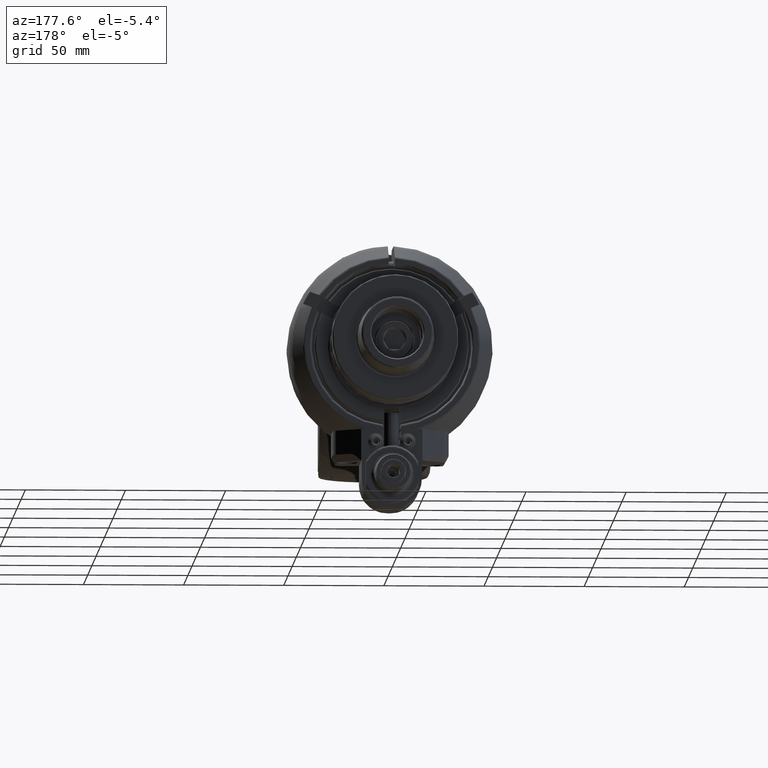
[diagram: clean part render]
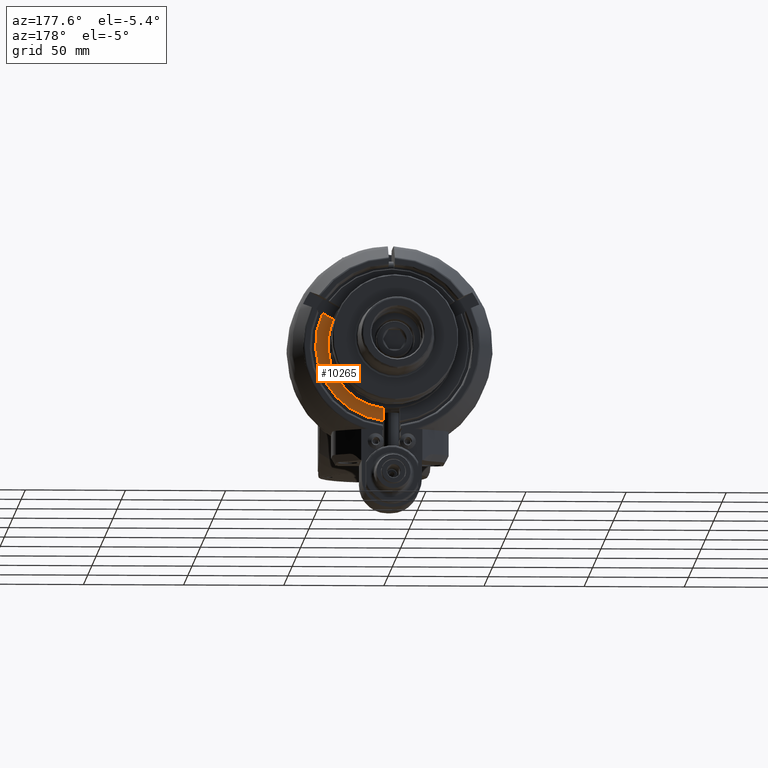
[diagram: same view with one face highlighted and labeled with its STEP entity id]
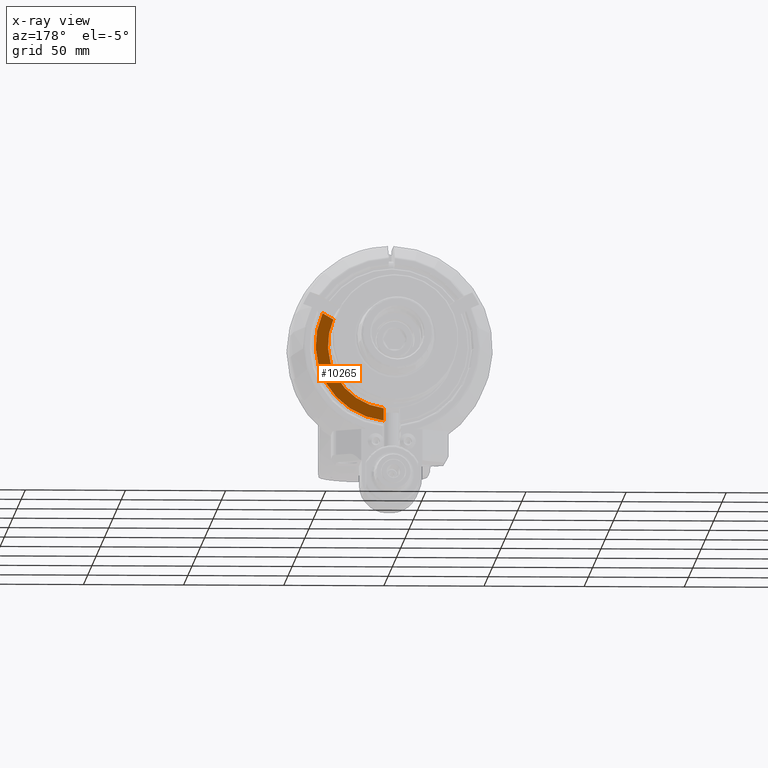
[diagram: x-ray of the same camera — body ghosted, the highlighted face saturated]
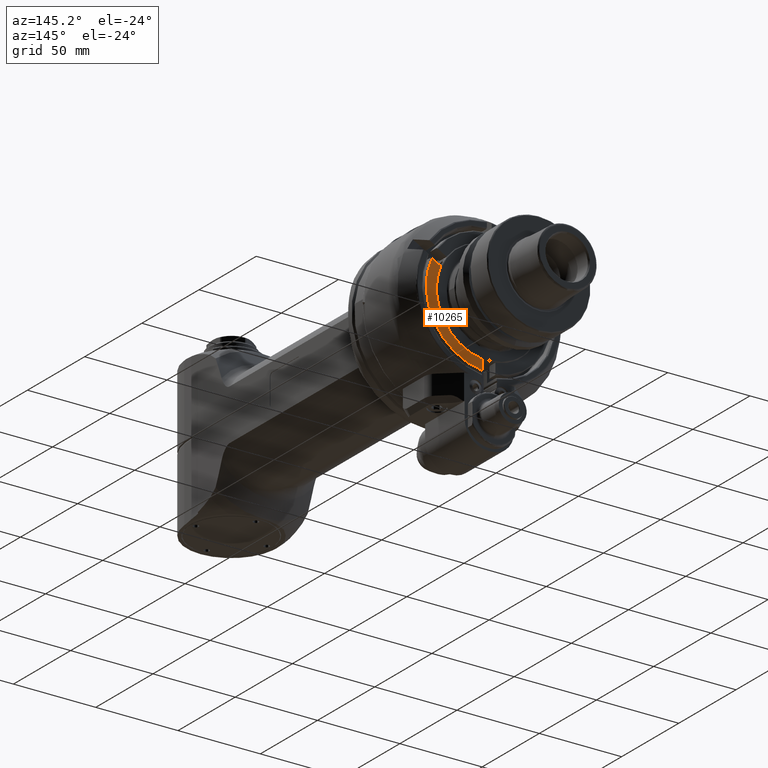
[diagram: same view with one face highlighted and labeled with its STEP entity id]
A machine part, auxiliary view. The second image highlights one B-rep face of the part: STEP entity #10265.
The next image is the same camera in x-ray: the body ghosted, the highlighted face saturated — about 0% of this face is hidden behind the body in this view.
A second angle (auxiliary view) of the same face is appended — the face is thin or edge-on in the first view.
In plain terms, the highlighted planar face has unit normal (0, 1, 0).
Its self-contained STEP definition (entity closure, byte-faithful):
#763=LINE('',#19314,#1406);
#764=LINE('',#19315,#1407);
#1406=VECTOR('',#13579,10.);
#1407=VECTOR('',#13580,6.18136427849379);
#2088=PLANE('',#11278);
#2512=FACE_OUTER_BOUND('',#3155,.T.);
#3155=EDGE_LOOP('',(#8371,#8372,#8373,#8374));
#3844=CIRCLE('',#11275,31.85);
#3847=CIRCLE('',#11279,38.);
#4703=VERTEX_POINT('',#19282);
#4704=VERTEX_POINT('',#19284);
#4712=VERTEX_POINT('',#19311);
#4713=VERTEX_POINT('',#19312);
#6014=EDGE_CURVE('',#4704,#4703,#3844,.T.);
#6024=EDGE_CURVE('',#4712,#4713,#3847,.T.);
#6025=EDGE_CURVE('',#4713,#4704,#763,.T.);
#6026=EDGE_CURVE('',#4703,#4712,#764,.T.);
#8371=ORIENTED_EDGE('',*,*,#6024,.T.);
#8372=ORIENTED_EDGE('',*,*,#6025,.T.);
#8373=ORIENTED_EDGE('',*,*,#6014,.T.);
#8374=ORIENTED_EDGE('',*,*,#6026,.T.);
#10265=ADVANCED_FACE('',(#2512),#2088,.T.);
#11275=AXIS2_PLACEMENT_3D('',#19285,#13566,#13567);
#11278=AXIS2_PLACEMENT_3D('',#19310,#13575,#13576);
#11279=AXIS2_PLACEMENT_3D('',#19313,#13577,#13578);
#13566=DIRECTION('center_axis',(0.,-1.,0.));
#13567=DIRECTION('ref_axis',(0.125588697017303,0.,-0.992082395359123));
#13575=DIRECTION('center_axis',(0.,1.,0.));
#13576=DIRECTION('ref_axis',(-1.,0.,0.));
#13577=DIRECTION('center_axis',(0.,1.,0.));
#13578=DIRECTION('ref_axis',(0.908396800327097,0.,0.418109140243899));
#13579=DIRECTION('',(0.,0.,1.));
#13580=DIRECTION('',(0.866025403784429,0.,0.500000000000017));
#19282=CARTESIAN_POINT('',(29.16585991721,39.,12.79746519002));
#19284=CARTESIAN_POINT('',(4.00000000012553,39.0000000003005,-31.5978242914328));
#19285=CARTESIAN_POINT('Origin',(0.,39.,0.));
#19310=CARTESIAN_POINT('Origin',(0.,39.,-31.75));
#19311=CARTESIAN_POINT('',(34.51907841243,39.,15.88814732927));
#19312=CARTESIAN_POINT('',(4.,39.,-37.78888725538));
#19313=CARTESIAN_POINT('Origin',(0.,39.,0.));
#19314=CARTESIAN_POINT('',(4.,39.,-31.625));
#19315=CARTESIAN_POINT('',(29.16585991721,39.,12.79746519002));